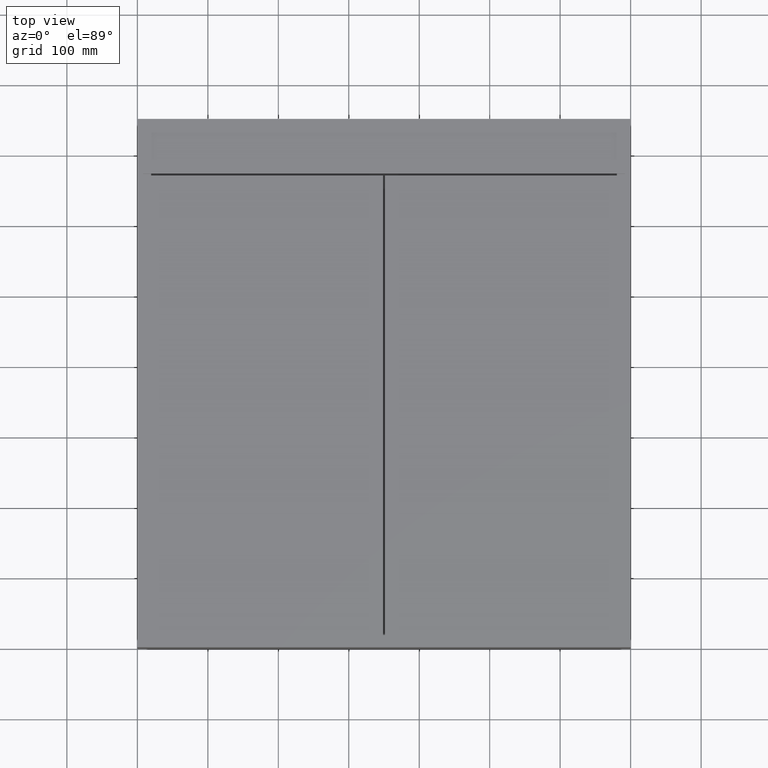
[diagram: clean part render]
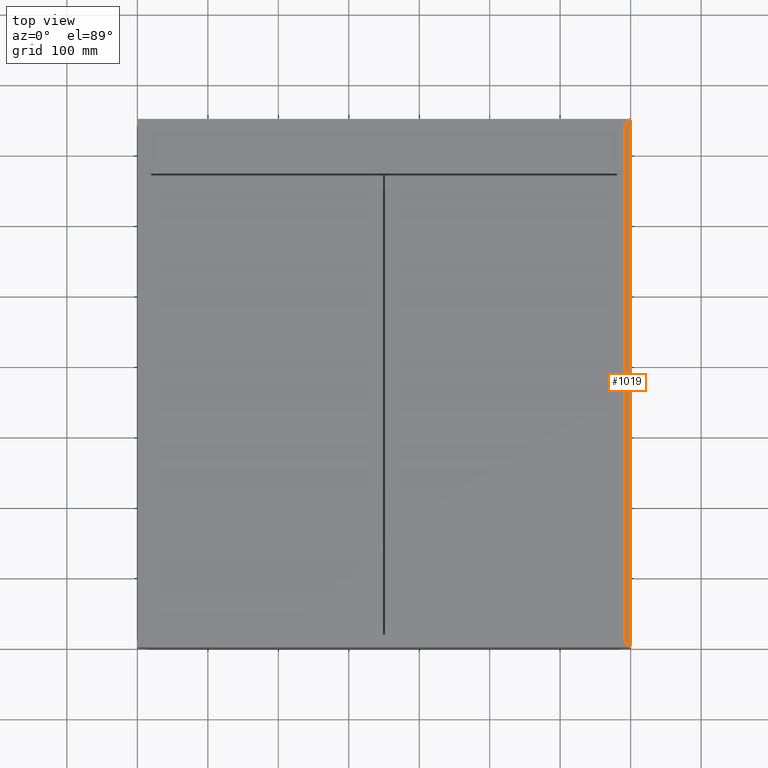
[diagram: same view with one face highlighted and labeled with its STEP entity id]
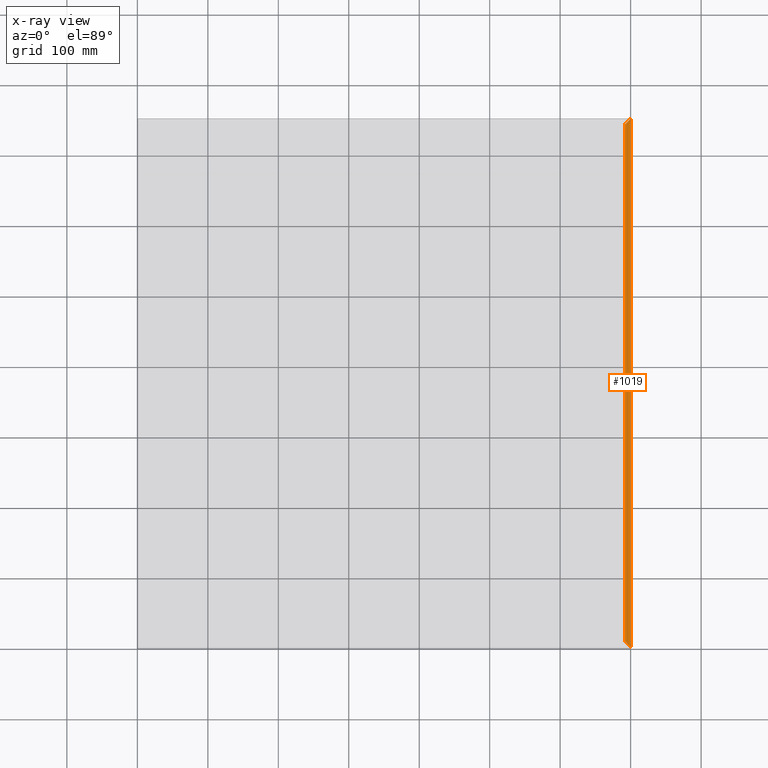
[diagram: x-ray of the same camera — body ghosted, the highlighted face saturated]
A machine part, top view. The second image highlights one B-rep face of the part: STEP entity #1019.
The next image is the same camera in x-ray: the body ghosted, the highlighted face saturated — about 0% of this face is hidden behind the body in this view.
In plain terms, the highlighted planar face has unit normal (-0, -0, -1).
Its self-contained STEP definition (entity closure, byte-faithful):
#247 = FACE_OUTER_BOUND ( 'NONE', #10753, .T. ) ;
#272 = VECTOR ( 'NONE', #6420, 1000.000000000000000 ) ;
#366 = DIRECTION ( 'NONE',  ( -0.7071067811865476838, -0.7071067811865474617, 0.0000000000000000000 ) ) ;
#847 = EDGE_CURVE ( 'NONE', #2016, #9867, #5628, .T. ) ;
#1019 = ADVANCED_FACE ( 'NONE', ( #247 ), #3857, .F. ) ;
#1110 = DIRECTION ( 'NONE',  ( 3.851859888774471706E-34, -1.000000000000000000, -3.560863911239712789E-32 ) ) ;
#1367 = CARTESIAN_POINT ( 'NONE',  ( 692.0000000000000000, 8.000000000000007105, 1.387778780781445676E-14 ) ) ;
#2016 = VERTEX_POINT ( 'NONE', #7677 ) ;
#2570 = LINE ( 'NONE', #6207, #9749 ) ;
#2652 = ORIENTED_EDGE ( 'NONE', *, *, #847, .T. ) ;
#2788 = CARTESIAN_POINT ( 'NONE',  ( 692.0000000000000000, 8.000000000000007105, 1.387778780781445676E-14 ) ) ;
#2862 = VECTOR ( 'NONE', #1110, 1000.000000000000000 ) ;
#2976 = DIRECTION ( 'NONE',  ( -1.000000000000000000, 3.851859888774470851E-34, 0.0000000000000000000 ) ) ;
#3376 = EDGE_CURVE ( 'NONE', #9867, #4695, #10900, .T. ) ;
#3857 = PLANE ( 'NONE',  #5917 ) ;
#4537 = EDGE_CURVE ( 'NONE', #7198, #4695, #2570, .T. ) ;
#4658 = EDGE_CURVE ( 'NONE', #7198, #2016, #4875, .T. ) ;
#4695 = VERTEX_POINT ( 'NONE', #5046 ) ;
#4875 = LINE ( 'NONE', #8489, #9720 ) ;
#5046 = CARTESIAN_POINT ( 'NONE',  ( 700.0000000000000000, 0.0000000000000000000, 4.163336342344337027E-14 ) ) ;
#5628 = LINE ( 'NONE', #9226, #2862 ) ;
#5917 = AXIS2_PLACEMENT_3D ( 'NONE', #7487, #11086, #2976 ) ;
#6161 = CARTESIAN_POINT ( 'NONE',  ( 700.0000000000000000, 750.0000000000000000, 4.163336342344337027E-14 ) ) ;
#6207 = CARTESIAN_POINT ( 'NONE',  ( 700.0000000000000000, 900.2131818450031915, 4.163336342344337027E-14 ) ) ;
#6420 = DIRECTION ( 'NONE',  ( 0.7071067811865476838, -0.7071067811865474617, -0.0000000000000000000 ) ) ;
#7198 = VERTEX_POINT ( 'NONE', #6161 ) ;
#7487 = CARTESIAN_POINT ( 'NONE',  ( 692.0000000000000000, 900.2131818450031915, 1.387778780781445676E-14 ) ) ;
#7677 = CARTESIAN_POINT ( 'NONE',  ( 692.0000000000000000, 742.0000000000000000, 1.387778780781445676E-14 ) ) ;
#7912 = ORIENTED_EDGE ( 'NONE', *, *, #3376, .T. ) ;
#8322 = ORIENTED_EDGE ( 'NONE', *, *, #4658, .T. ) ;
#8489 = CARTESIAN_POINT ( 'NONE',  ( 700.0000000000000000, 750.0000000000000000, 4.163336342344337027E-14 ) ) ;
#9226 = CARTESIAN_POINT ( 'NONE',  ( 692.0000000000000000, 900.2131818450031915, 1.387778780781445676E-14 ) ) ;
#9442 = ORIENTED_EDGE ( 'NONE', *, *, #4537, .F. ) ;
#9720 = VECTOR ( 'NONE', #366, 1000.000000000000000 ) ;
#9749 = VECTOR ( 'NONE', #9805, 1000.000000000000000 ) ;
#9805 = DIRECTION ( 'NONE',  ( 3.851859888774471706E-34, -1.000000000000000000, -3.560863911239712789E-32 ) ) ;
#9867 = VERTEX_POINT ( 'NONE', #1367 ) ;
#10753 = EDGE_LOOP ( 'NONE', ( #2652, #7912, #9442, #8322 ) ) ;
#10900 = LINE ( 'NONE', #2788, #272 ) ;
#11086 = DIRECTION ( 'NONE',  ( -1.371594886908882407E-65, -3.560863911239711694E-32, -1.000000000000000000 ) ) ;